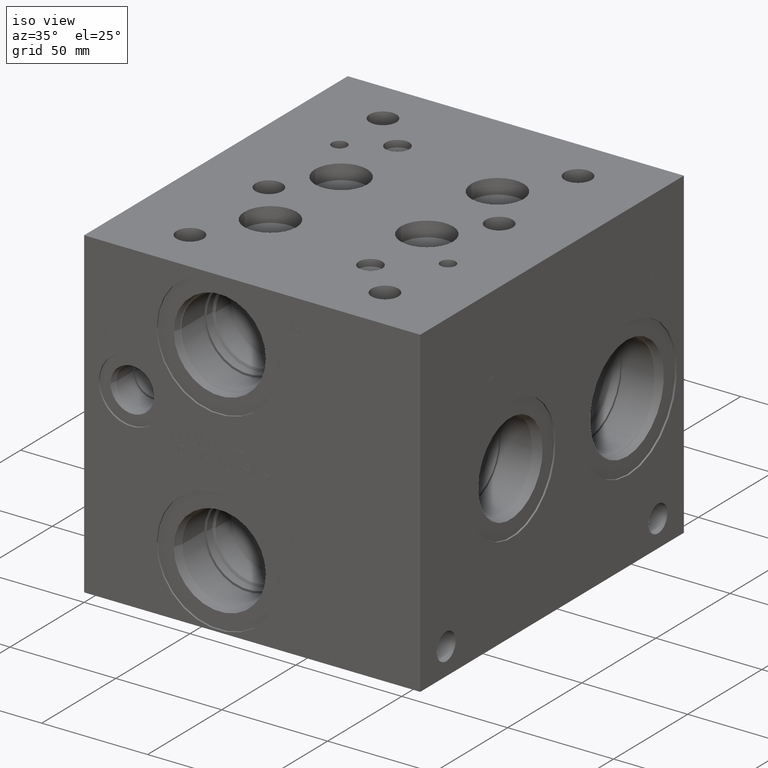
[diagram: clean part render]
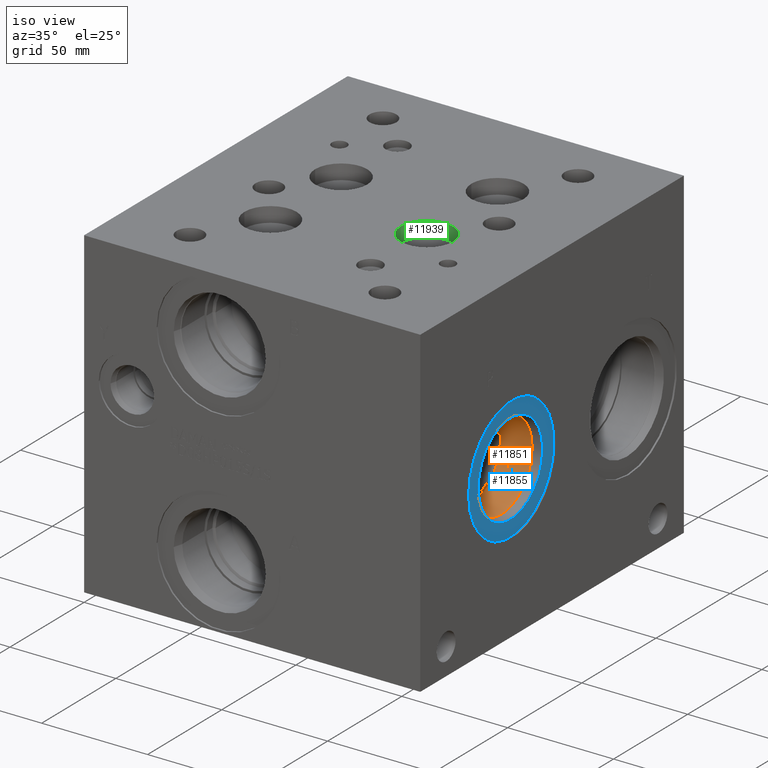
[diagram: same view with three faces highlighted in distinct colors, each labeled with its STEP entity id]
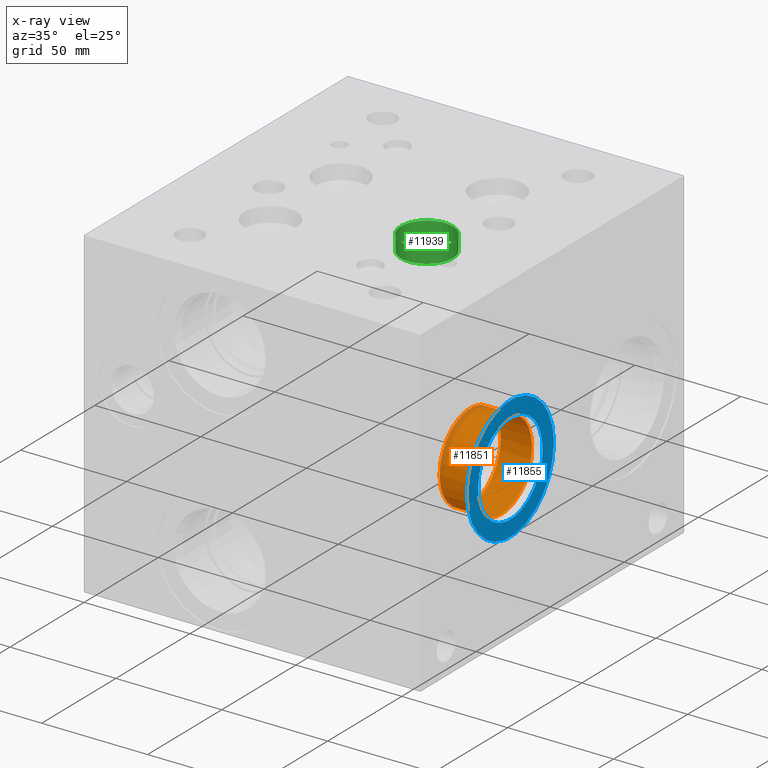
[diagram: x-ray of the same camera — body ghosted, the three highlighted faces saturated]
A machine part, iso view with three faces highlighted in distinct colors.
The next image is the same camera in x-ray (body ghosted, the three faces saturated) — at least one of them is partly hidden behind the body in this view.
Their STEP definitions:

[orange] entity #11851 — the highlighted cylindrical surface (bore or boss wall) has radius 20.6375 mm, axis along (1, 0, 0).
#82=CYLINDRICAL_SURFACE('',#12421,20.6375);
#219=CIRCLE('',#12418,20.6375);
#220=CIRCLE('',#12419,20.6375);
#222=CIRCLE('',#12422,20.6375);
#1353=FACE_OUTER_BOUND('',#2033,.T.);
#2033=EDGE_LOOP('',(#10125,#10126,#10127,#10128,#10129));
#3187=LINE('',#19982,#4279);
#4279=VECTOR('',#14595,20.6375);
#5588=VERTEX_POINT('',#19973);
#5589=VERTEX_POINT('',#19974);
#5591=VERTEX_POINT('',#19980);
#7164=EDGE_CURVE('',#5588,#5589,#219,.T.);
#7165=EDGE_CURVE('',#5589,#5588,#220,.T.);
#7167=EDGE_CURVE('',#5591,#5591,#222,.T.);
#7168=EDGE_CURVE('',#5591,#5589,#3187,.T.);
#10125=ORIENTED_EDGE('',*,*,#7167,.F.);
#10126=ORIENTED_EDGE('',*,*,#7168,.T.);
#10127=ORIENTED_EDGE('',*,*,#7164,.F.);
#10128=ORIENTED_EDGE('',*,*,#7165,.F.);
#10129=ORIENTED_EDGE('',*,*,#7168,.F.);
#11851=ADVANCED_FACE('',(#1353),#82,.F.);
#12418=AXIS2_PLACEMENT_3D('',#19975,#14585,#14586);
#12419=AXIS2_PLACEMENT_3D('',#19976,#14587,#14588);
#12421=AXIS2_PLACEMENT_3D('',#19979,#14591,#14592);
#12422=AXIS2_PLACEMENT_3D('',#19981,#14593,#14594);
#14585=DIRECTION('center_axis',(1.,0.,0.));
#14586=DIRECTION('ref_axis',(0.,1.,0.));
#14587=DIRECTION('center_axis',(1.,0.,0.));
#14588=DIRECTION('ref_axis',(0.,1.,0.));
#14591=DIRECTION('center_axis',(1.,0.,0.));
#14592=DIRECTION('ref_axis',(0.,1.,0.));
#14593=DIRECTION('center_axis',(-1.,0.,0.));
#14594=DIRECTION('ref_axis',(0.,1.,0.));
#14595=DIRECTION('',(-1.,0.,0.));
#19973=CARTESIAN_POINT('',(138.9126,82.5627,71.4248));
#19974=CARTESIAN_POINT('',(138.9126,41.2877,71.4248));
#19975=CARTESIAN_POINT('Origin',(138.9126,61.9252,71.4248));
#19976=CARTESIAN_POINT('Origin',(138.9126,61.9252,71.4248));
#19979=CARTESIAN_POINT('Origin',(148.8313,61.9252,71.4248));
#19980=CARTESIAN_POINT('',(153.779000017461,41.2877,71.4248));
#19981=CARTESIAN_POINT('Origin',(153.779000017461,61.9252,71.4248));
#19982=CARTESIAN_POINT('',(148.8313,41.2877,71.4248));

[blue] entity #11855 — the highlighted planar face has unit normal (1, 0, 0).
#225=CIRCLE('',#12429,29.2862);
#226=CIRCLE('',#12430,29.2862);
#227=CIRCLE('',#12431,21.7551);
#477=FACE_BOUND('',#2038,.T.);
#835=PLANE('',#12428);
#1357=FACE_OUTER_BOUND('',#2037,.T.);
#2037=EDGE_LOOP('',(#10143,#10144));
#2038=EDGE_LOOP('',(#10145));
#5595=VERTEX_POINT('',#19995);
#5596=VERTEX_POINT('',#19996);
#5597=VERTEX_POINT('',#19999);
#7174=EDGE_CURVE('',#5595,#5596,#225,.T.);
#7175=EDGE_CURVE('',#5596,#5595,#226,.T.);
#7176=EDGE_CURVE('',#5597,#5597,#227,.T.);
#10143=ORIENTED_EDGE('',*,*,#7174,.T.);
#10144=ORIENTED_EDGE('',*,*,#7175,.T.);
#10145=ORIENTED_EDGE('',*,*,#7176,.F.);
#11855=ADVANCED_FACE('',(#1357,#477),#835,.T.);
#12428=AXIS2_PLACEMENT_3D('',#19994,#14609,#14610);
#12429=AXIS2_PLACEMENT_3D('',#19997,#14611,#14612);
#12430=AXIS2_PLACEMENT_3D('',#19998,#14613,#14614);
#12431=AXIS2_PLACEMENT_3D('',#20000,#14615,#14616);
#14609=DIRECTION('center_axis',(1.,0.,0.));
#14610=DIRECTION('ref_axis',(0.,1.,0.));
#14611=DIRECTION('center_axis',(1.,0.,0.));
#14612=DIRECTION('ref_axis',(0.,1.,0.));
#14613=DIRECTION('center_axis',(1.,0.,0.));
#14614=DIRECTION('ref_axis',(0.,1.,0.));
#14615=DIRECTION('center_axis',(1.,0.,0.));
#14616=DIRECTION('ref_axis',(0.,1.,0.));
#19994=CARTESIAN_POINT('Origin',(157.9626,61.9252,71.4248));
#19995=CARTESIAN_POINT('',(157.9626,91.2114,71.4248));
#19996=CARTESIAN_POINT('',(157.9626,32.639,71.4248));
#19997=CARTESIAN_POINT('Origin',(157.9626,61.9252,71.4248));
#19998=CARTESIAN_POINT('Origin',(157.9626,61.9252,71.4248));
#19999=CARTESIAN_POINT('',(157.9626,40.1701,71.4248));
#20000=CARTESIAN_POINT('Origin',(157.9626,61.9252,71.4248));

[green] entity #11939 — the highlighted cylindrical surface (bore or boss wall) has radius 12.3063 mm, axis along (0, 0, 1).
#123=CYLINDRICAL_SURFACE('',#12642,12.3063);
#353=CIRCLE('',#12640,12.3063);
#354=CIRCLE('',#12641,12.3063);
#355=CIRCLE('',#12643,12.3063);
#356=CIRCLE('',#12644,12.3063);
#1441=FACE_OUTER_BOUND('',#2136,.T.);
#2136=EDGE_LOOP('',(#10553,#10554,#10555,#10556,#10557,#10558));
#3260=LINE('',#20424,#4352);
#4352=VECTOR('',#15112,12.3063);
#5734=VERTEX_POINT('',#20413);
#5735=VERTEX_POINT('',#20414);
#5737=VERTEX_POINT('',#20420);
#5738=VERTEX_POINT('',#20421);
#7370=EDGE_CURVE('',#5734,#5735,#353,.T.);
#7372=EDGE_CURVE('',#5735,#5734,#354,.T.);
#7373=EDGE_CURVE('',#5737,#5738,#355,.T.);
#7374=EDGE_CURVE('',#5738,#5737,#356,.T.);
#7375=EDGE_CURVE('',#5738,#5735,#3260,.T.);
#10553=ORIENTED_EDGE('',*,*,#7373,.F.);
#10554=ORIENTED_EDGE('',*,*,#7374,.F.);
#10555=ORIENTED_EDGE('',*,*,#7375,.T.);
#10556=ORIENTED_EDGE('',*,*,#7370,.F.);
#10557=ORIENTED_EDGE('',*,*,#7372,.F.);
#10558=ORIENTED_EDGE('',*,*,#7375,.F.);
#11939=ADVANCED_FACE('',(#1441),#123,.F.);
#12640=AXIS2_PLACEMENT_3D('',#20415,#15101,#15102);
#12641=AXIS2_PLACEMENT_3D('',#20418,#15104,#15105);
#12642=AXIS2_PLACEMENT_3D('',#20419,#15106,#15107);
#12643=AXIS2_PLACEMENT_3D('',#20422,#15108,#15109);
#12644=AXIS2_PLACEMENT_3D('',#20423,#15110,#15111);
#15101=DIRECTION('center_axis',(0.,0.,1.));
#15102=DIRECTION('ref_axis',(1.,0.,0.));
#15104=DIRECTION('center_axis',(0.,0.,1.));
#15105=DIRECTION('ref_axis',(1.,0.,0.));
#15106=DIRECTION('center_axis',(0.,0.,1.));
#15107=DIRECTION('ref_axis',(1.,0.,0.));
#15108=DIRECTION('center_axis',(0.,0.,-1.));
#15109=DIRECTION('ref_axis',(1.,0.,0.));
#15110=DIRECTION('center_axis',(0.,0.,-1.));
#15111=DIRECTION('ref_axis',(1.,0.,0.));
#15112=DIRECTION('',(0.,0.,-1.));
#20413=CARTESIAN_POINT('',(120.2563,76.9874,145.29495));
#20414=CARTESIAN_POINT('',(95.6437,76.9874,145.29495));
#20415=CARTESIAN_POINT('Origin',(107.95,76.9874,145.29495));
#20418=CARTESIAN_POINT('Origin',(107.95,76.9874,145.29495));
#20419=CARTESIAN_POINT('Origin',(107.95,76.9874,148.847475));
#20420=CARTESIAN_POINT('',(120.2563,76.9874,152.4));
#20421=CARTESIAN_POINT('',(95.6437,76.9874,152.4));
#20422=CARTESIAN_POINT('Origin',(107.95,76.9874,152.4));
#20423=CARTESIAN_POINT('Origin',(107.95,76.9874,152.4));
#20424=CARTESIAN_POINT('',(95.6437,76.9874,148.847475));